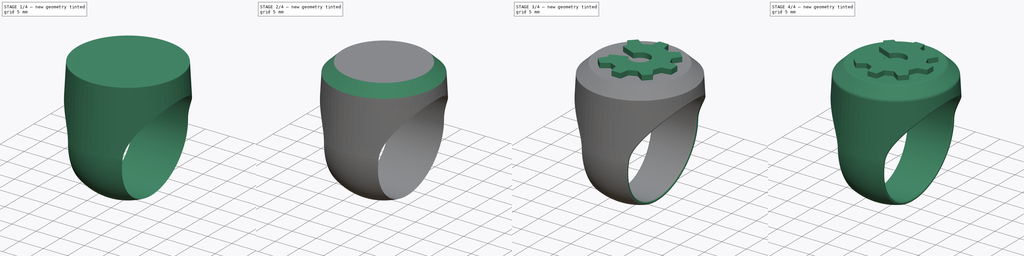
[diagram: build sequence overview — one tinted view per stage of 4, left to right]
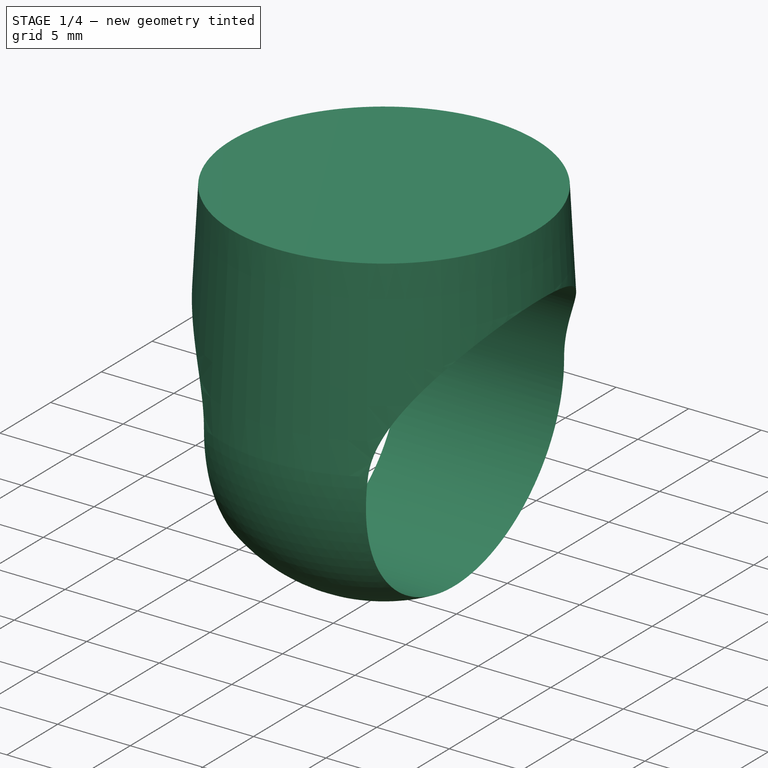
[diagram: stage 1 of 4 — iso view after this stage's code; geometry added in this stage tinted green]
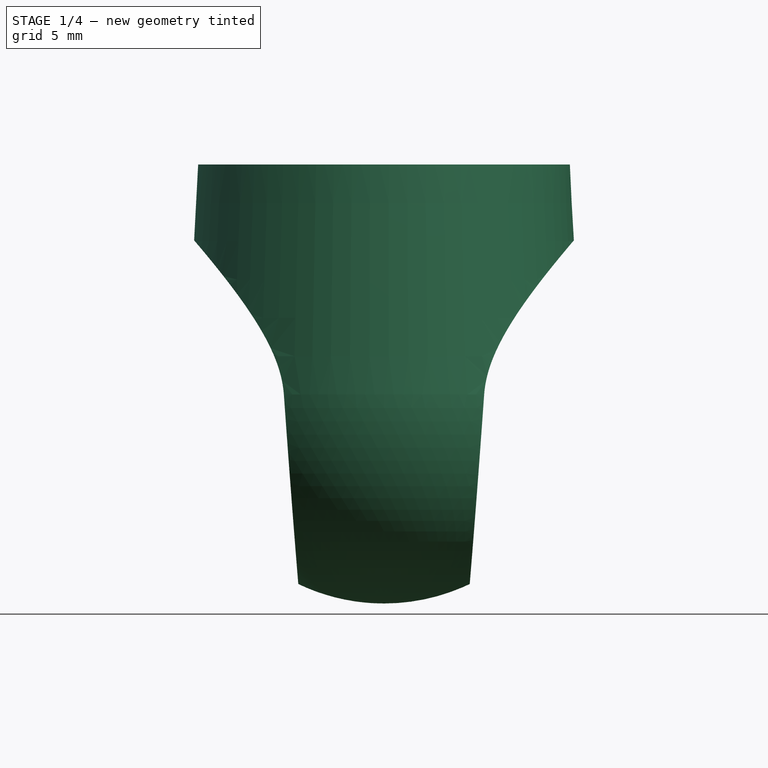
[diagram: stage 1 of 4 — front view after this stage's code; geometry added in this stage tinted green]
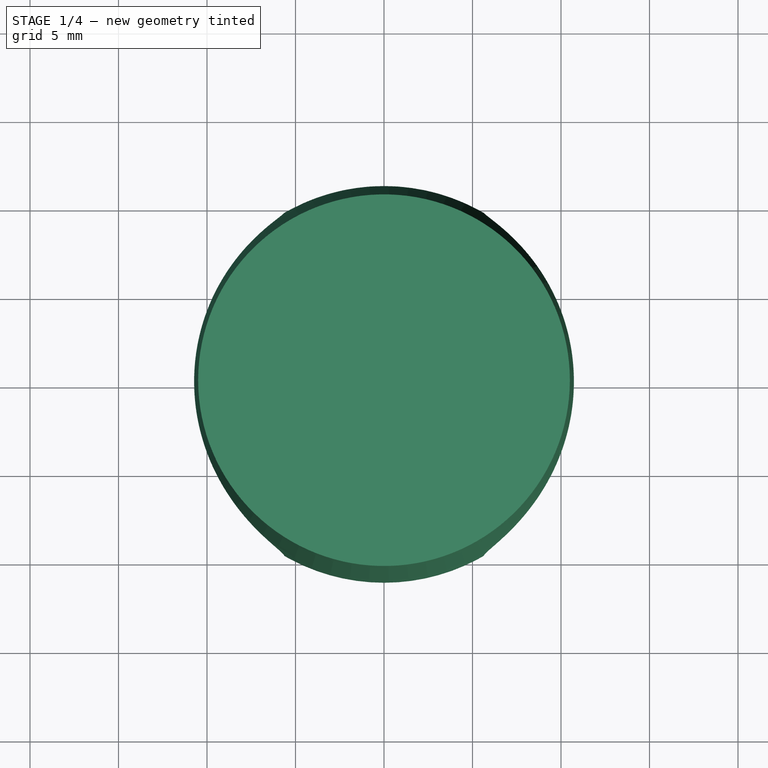
[diagram: stage 1 of 4 — top view after this stage's code; geometry added in this stage tinted green]
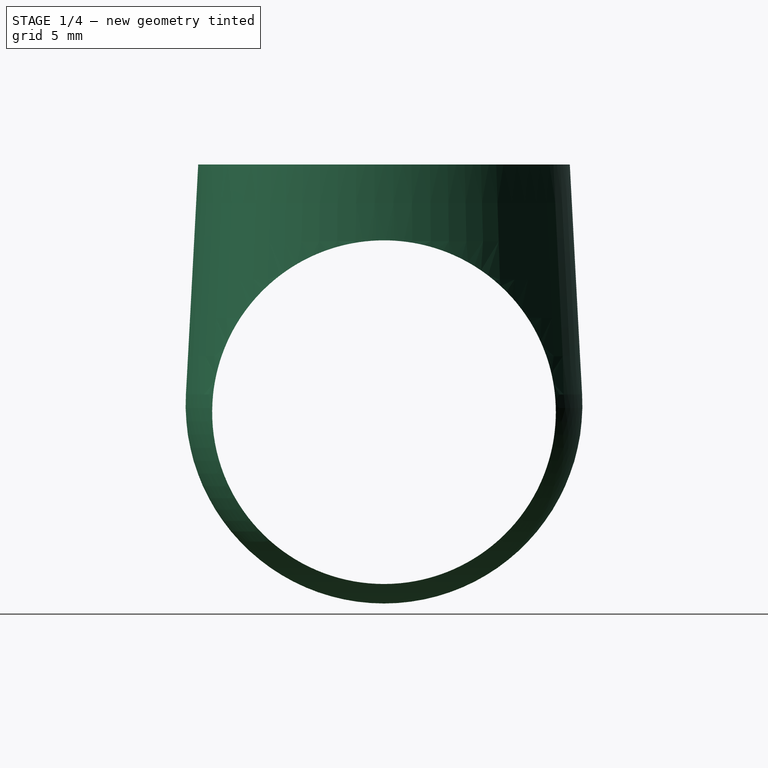
[diagram: stage 1 of 4 — right view after this stage's code; geometry added in this stage tinted green]
FCSTD DOCUMENT  (FreeCAD 1.1R44795 (Git))
Label: RingOshw
License: All rights reserved
objects: PartDesign::Fillet×5, Sketcher::SketchObject×4, PartDesign::Pocket×2, App::Point×1, App::VarSet×1, PartDesign::Revolution×1, PartDesign::Chamfer×1, PartDesign::Pad×1, PartDesign::Body×1
note: 39 computed .brp shape members not serialized (recipe doc carries the construction recipe); baked Part::Feature solids carry a one-line shape summary decoded from their .brp

FEATURE [App::Point] Origin001
  Role = Origin
FEATURE [App::VarSet] VarSet  label="Dimensions"
  FaceDiameter = 21
  FingerHoleOffset = 0.4
  GearPad = 1
  InteriorDiameter = 19.4169
  RingThickness = 1.5
  Size = 61
  WallThickness = 1.5
  expr: InteriorDiameter = Size / 3.14159
FEATURE [Sketcher::SketchObject] Sketch  label="RingBodySketch"
  ArcFitTolerance = 1e-06
  AttachmentSupport = -> [Origin]
  ExternalTypes = [0]
  FullyConstrained = true
  MakeInternals = false
  MapMode = 5
  Placement = pos=(0,0,0) rot=(1,0,0;1.5708rad)
  _ExternalGeoVersion = 1
  expr: Constraints[10] = <<Dimensions>>.InteriorDiameter / 2 * 1.4
  expr: Constraints[7] = <<Dimensions>>.InteriorDiameter / 2 + <<Dimensions>>.RingThickness
  expr: Constraints[9] = <<Dimensions>>.FaceDiameter / 2
  sketch-geometry (4):
    g0: ArcOfCircle CenterX=0 CenterY=0 CenterZ=0 NormalX=0 NormalY=0 NormalZ=1 AngleXU=0 Radius=11.2085 StartAngle=3.08835 EndAngle=4.71239
    g1: LineSegment StartX=-11.1926 StartY=0.596499 StartZ=0 EndX=-10.5 EndY=13.5918 EndZ=0
    g2: LineSegment StartX=-10.5 StartY=13.5918 StartZ=0 EndX=-1.8e-15 EndY=13.5918 EndZ=0
    g3: LineSegment StartX=-2.1e-15 StartY=13.5918 StartZ=0 EndX=-2.1e-15 EndY=-11.2085 EndZ=0
  constraints (11):
    c: Coincident(g0,g-1)
    c: Coincident(g2,g1)
    c: Horizontal(g2)
    c: Coincident(g3,g2)
    c: Coincident(g3,g0)
    c: Vertical(g3)
    c: Tangent(g1,g0) = 1.5708
    c: Radius(g0) = 11.2085
    c: PointOnObject(g2,g-2)
    c: Distance(g2,g2) = 10.5
    c: Distance(g-1,g2) = 13.5918
FEATURE [PartDesign::Revolution] Revolution  label="RingBody"
  Angle = 360
  Angle2 = 0
  Axis = (0,2e-16,1)
  Base = (0,0,0)
  FuseOrder = 0
  Profile = -> Sketch
  ReferenceAxis = -> Sketch [V_Axis]
  Refine = true
  Suppressed = false
  Type = 0
FEATURE [Sketcher::SketchObject] Sketch001  label="FingerHoleSketch"
  ArcFitTolerance = 1e-06
  AttachmentSupport = -> [Origin]
  ExternalTypes = [0]
  FullyConstrained = true
  MakeInternals = false
  MapMode = 5
  Placement = pos=(0,0,0) rot=(0.57735,0.57735,0.57735;2.0944rad)
  _ExternalGeoVersion = 1
  expr: Constraints[0] = <<Dimensions>>.InteriorDiameter
  expr: Constraints[2] = <<Dimensions>>.FingerHoleOffset
  sketch-geometry (1):
    g0: Circle CenterX=0 CenterY=-0.4 CenterZ=0 NormalX=0 NormalY=0 NormalZ=1 AngleXU=0 Radius=9.70846
  constraints (3):
    c: Diameter(g0) = 19.4169
    c: PointOnObject(g0,g-2)
    c: Distance(g0,g-1) = 0.4
FEATURE [PartDesign::Pocket] Pocket  label="FingerHole"
  BaseFeature = -> Revolution
  Direction = (-1,0,0)
  Length = 5
  Length2 = 5
  Profile = -> Sketch001
  ReferenceAxis = -> Sketch001 [N_Axis]
  Refine = true
  SideType = 2
  Suppressed = false
  Type = 1
  Type2 = 0
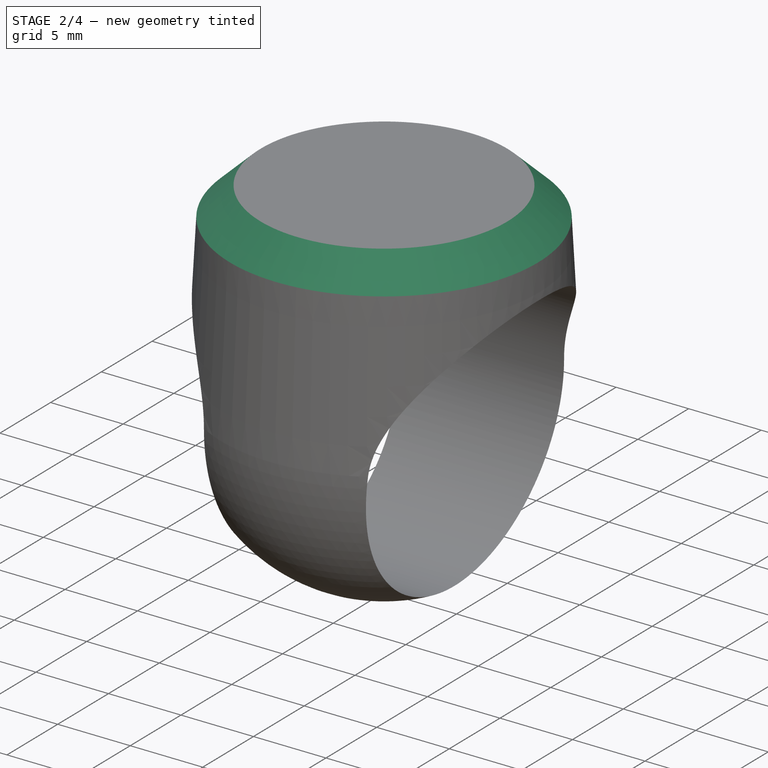
[diagram: stage 2 of 4 — iso view after this stage's code; geometry added in this stage tinted green]
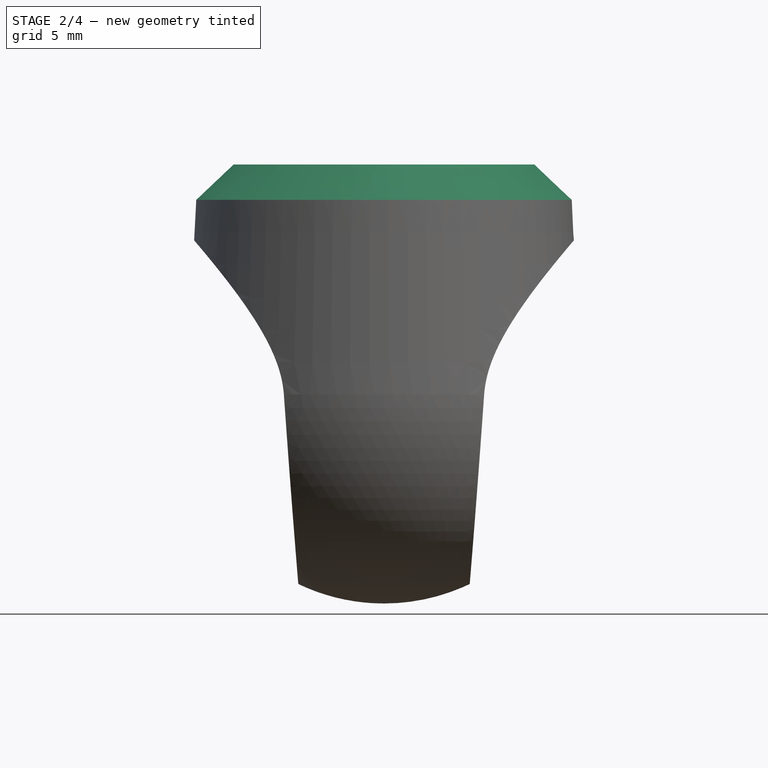
[diagram: stage 2 of 4 — front view after this stage's code; geometry added in this stage tinted green]
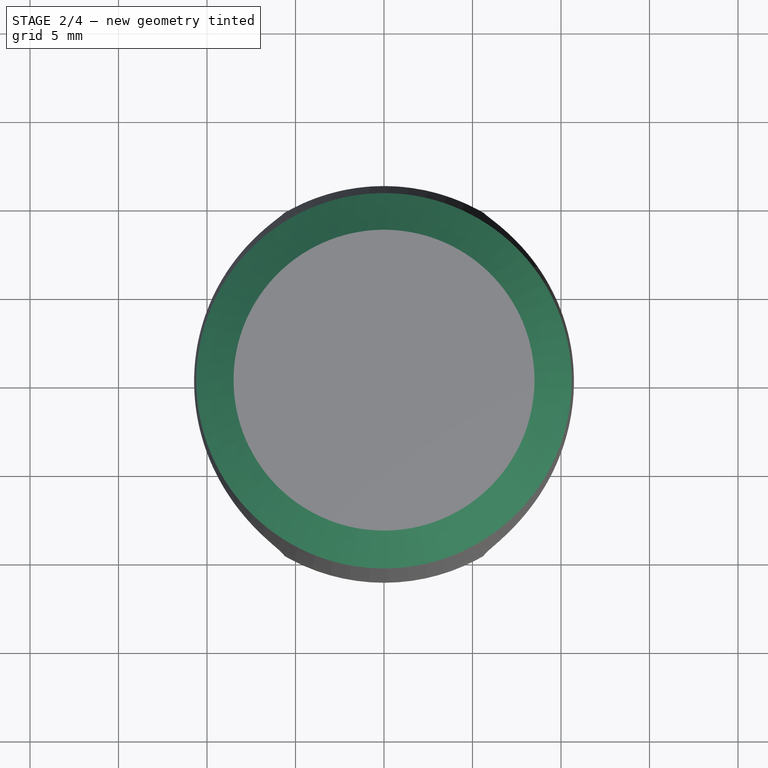
[diagram: stage 2 of 4 — top view after this stage's code; geometry added in this stage tinted green]
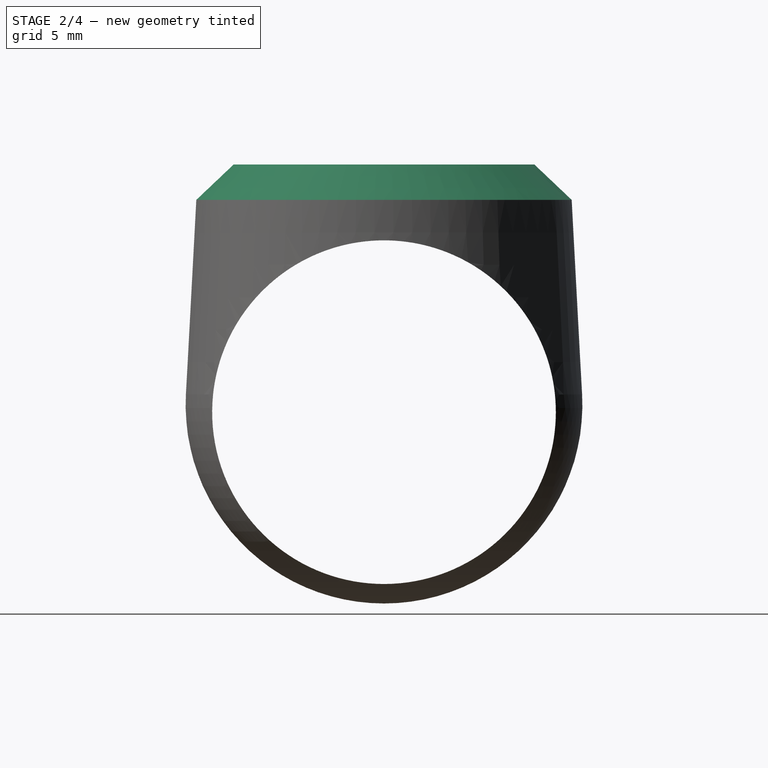
[diagram: stage 2 of 4 — right view after this stage's code; geometry added in this stage tinted green]
FEATURE [Sketcher::SketchObject] Sketch002  label="MaterialOptimizationSketch"
  ArcFitTolerance = 1e-06
  AttachmentSupport = -> [Pocket]
  ExternalTypes = [0]
  FullyConstrained = true
  MakeInternals = false
  MapMode = 5
  Placement = pos=(0,3e-15,13.5918) rot=(0,0,1;0rad)
  _ExternalGeoVersion = 1
  expr: Constraints[1] = <<Dimensions>>.FaceDiameter - <<Dimensions>>.WallThickness * 2
  sketch-geometry (1):
    g0: Circle CenterX=0 CenterY=0 CenterZ=0 NormalX=0 NormalY=0 NormalZ=1 AngleXU=0 Radius=9
  constraints (2):
    c: Coincident(g0,g-1)
    c: Diameter(g0) = 18
FEATURE [PartDesign::Pocket] Pocket001  label="MaterialOptimization"
  BaseFeature = -> Pocket
  Direction = (0,0,-1)
  Length = 8
  Length2 = -1.5
  Profile = -> Sketch002
  ReferenceAxis = -> Sketch002 [N_Axis]
  Refine = true
  SideType = 1
  Suppressed = false
  Type = 2
  Type2 = 0
  expr: Length2 = -<<Dimensions>>.WallThickness
FEATURE [PartDesign::Fillet] Fillet  label="OptimizationPocketFillet"
  Base = -> Pocket001 [Edge17]
  BaseFeature = -> Pocket001
  Radius = 1
  Refine = true
  SupportTransform = false
  Suppressed = false
  UseAllEdges = false
FEATURE [PartDesign::Chamfer] Chamfer  label="FaceChamfer"
  Angle = 45
  Base = -> Fillet [Edge20]
  BaseFeature = -> Fillet
  ChamferType = 0
  FlipDirection = false
  Refine = true
  Size = 2
  Size2 = 1
  SupportTransform = false
  Suppressed = false
  UseAllEdges = false
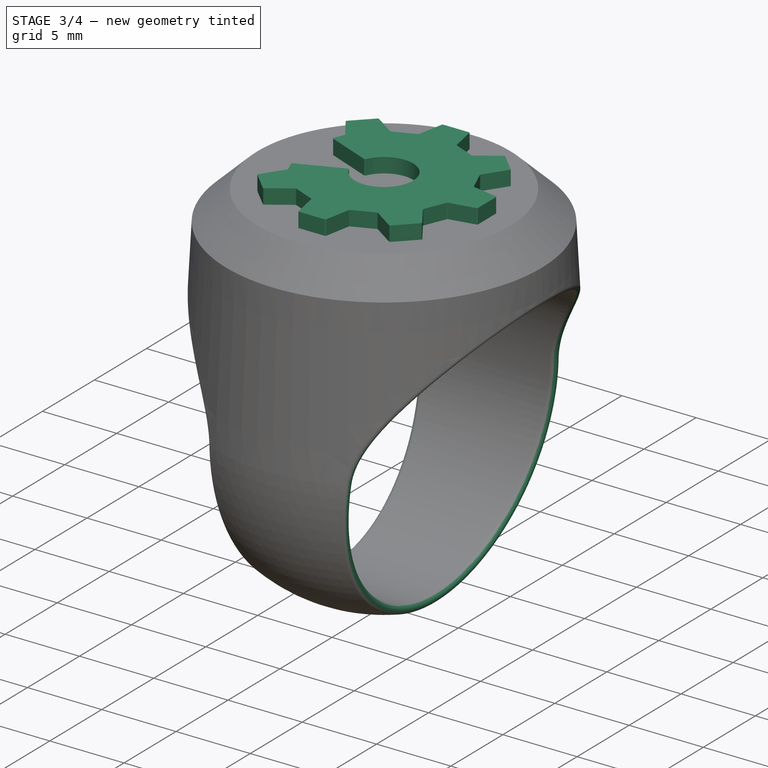
[diagram: stage 3 of 4 — iso view after this stage's code; geometry added in this stage tinted green]
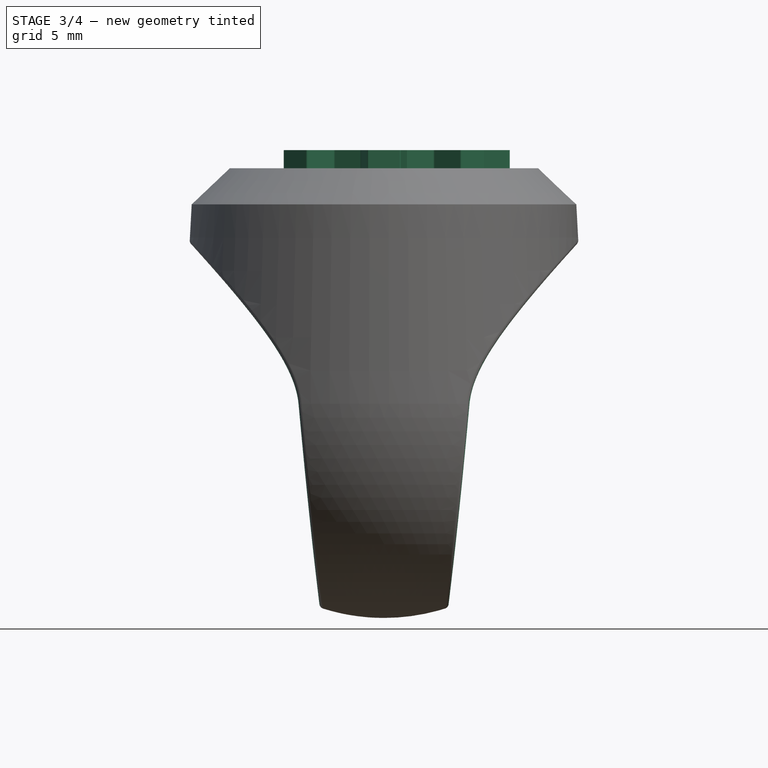
[diagram: stage 3 of 4 — front view after this stage's code; geometry added in this stage tinted green]
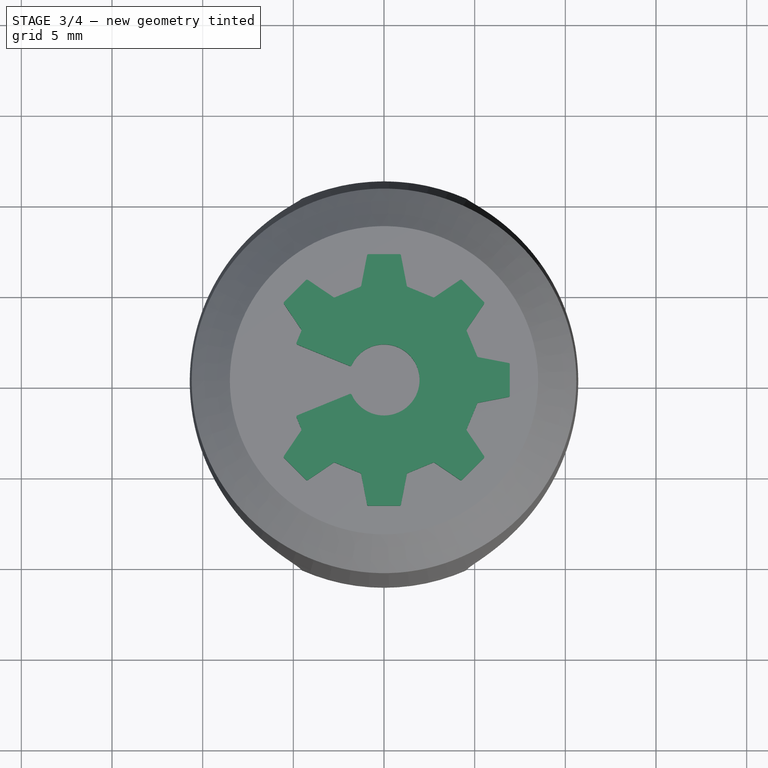
[diagram: stage 3 of 4 — top view after this stage's code; geometry added in this stage tinted green]
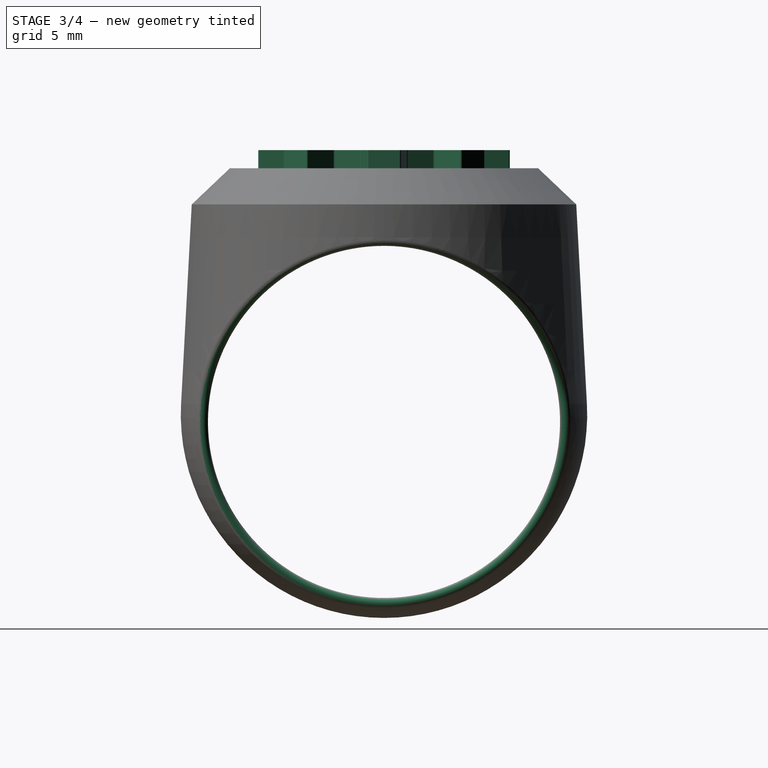
[diagram: stage 3 of 4 — right view after this stage's code; geometry added in this stage tinted green]
FEATURE [Sketcher::SketchObject] Sketch003  label="OshwGearSketch"
  ArcFitTolerance = 1e-06
  AttachmentSupport = -> [Chamfer]
  ExternalTypes = [0]
  FullyConstrained = false
  MakeInternals = false
  MapMode = 5
  Placement = pos=(0,3e-15,13.5918) rot=(0,0,1;0rad)
  _ExternalGeoVersion = 1
  sketch-geometry (64):
    g0: ArcOfCircle CenterX=-1e-06 CenterY=0 CenterZ=0 NormalX=0 NormalY=0 NormalZ=1 AngleXU=0 Radius=1.96007 StartAngle=3.57295 EndAngle=8.99342
    g1: ArcOfCircle CenterX=-1.86188 CenterY=0.856953 CenterZ=0 NormalX=0 NormalY=0 NormalZ=1 AngleXU=0 Radius=0.0895606 StartAngle=4.32465 EndAngle=5.85192
    g2: LineSegment StartX=-1.89575 StartY=0.774041 StartZ=0 EndX=-4.7737 EndY=1.94913 EndZ=0
    g3: ArcOfCircle CenterX=-4.73984 CenterY=2.03205 CenterZ=0 NormalX=0 NormalY=0 NormalZ=1 AngleXU=0 Radius=0.089574 StartAngle=2.74895 EndAngle=4.32468
    g4: LineSegment StartX=-4.8226 StartY=2.06632 StartZ=0 EndX=-4.55822 EndY=2.70459 EndZ=0
    g5: ArcOfCircle CenterX=-4.64095 CenterY=2.73887 CenterZ=0 NormalX=0 NormalY=0 NormalZ=1 AngleXU=0 Radius=0.089552 StartAngle=5.89038 EndAngle=6.8781
    g6: LineSegment StartX=-4.56678 StartY=2.78906 StartZ=0 EndX=-5.51646 EndY=4.19277 EndZ=0
    g7: ArcOfCircle CenterX=-5.44226 CenterY=4.24296 CenterZ=0 NormalX=0 NormalY=0 NormalZ=1 AngleXU=0 Radius=0.089581 StartAngle=2.3563 EndAngle=3.7363
    g8: LineSegment StartX=-5.50561 StartY=4.30629 StartZ=0 EndX=-4.3063 EndY=5.50561 EndZ=0
    g9: ArcOfCircle CenterX=-4.24296 CenterY=5.44227 CenterZ=0 NormalX=0 NormalY=0 NormalZ=1 AngleXU=0 Radius=0.089579 StartAngle=0.976061 EndAngle=2.35612
    g10: LineSegment StartX=-4.19277 StartY=5.51646 StartZ=0 EndX=-2.78906 EndY=4.56678 EndZ=0
    g11: ArcOfCircle CenterX=-2.73887 CenterY=4.64095 CenterZ=0 NormalX=0 NormalY=0 NormalZ=1 AngleXU=0 Radius=0.089556 StartAngle=4.11749 EndAngle=5.10517
    g12: LineSegment StartX=-2.70459 StartY=4.55822 StartZ=0 EndX=-1.31071 EndY=5.13558 EndZ=0
    g13: ArcOfCircle CenterX=-1.34499 CenterY=5.21834 CenterZ=0 NormalX=0 NormalY=0 NormalZ=1 AngleXU=0 Radius=0.08957 StartAngle=5.10509 EndAngle=6.0926
    g14: LineSegment StartX=-1.25704 StartY=5.20137 StartZ=0 EndX=-0.935995 EndY=6.86546 EndZ=0
    g15: ArcOfCircle CenterX=-0.848047 CenterY=6.8485 CenterZ=0 NormalX=0 NormalY=0 NormalZ=1 AngleXU=0 Radius=0.08957 StartAngle=1.5708 EndAngle=2.95101
    g16: LineSegment StartX=-0.848047 StartY=6.93807 StartZ=0 EndX=0.848045 EndY=6.93807 EndZ=0
    g17: ArcOfCircle CenterX=0.848045 CenterY=6.8485 CenterZ=0 NormalX=0 NormalY=0 NormalZ=1 AngleXU=0 Radius=0.08957 StartAngle=0.190585 EndAngle=1.5708
    g18: LineSegment StartX=0.935993 StartY=6.86546 StartZ=0 EndX=1.25704 EndY=5.20137 EndZ=0
    g19: ArcOfCircle CenterX=1.34499 CenterY=5.21834 CenterZ=0 NormalX=0 NormalY=0 NormalZ=1 AngleXU=0 Radius=0.089576 StartAngle=3.33222 EndAngle=4.31964
    g20: LineSegment StartX=1.31071 StartY=5.13558 StartZ=0 EndX=2.70459 EndY=4.55822 EndZ=0
    g21: ArcOfCircle CenterX=2.73887 CenterY=4.64095 CenterZ=0 NormalX=0 NormalY=0 NormalZ=1 AngleXU=0 Radius=0.089552 StartAngle=4.31958 EndAngle=5.30731
    g22: LineSegment StartX=2.78906 StartY=4.56679 StartZ=0 EndX=4.19277 EndY=5.51646 EndZ=0
    g23: ArcOfCircle CenterX=4.24296 CenterY=5.44227 CenterZ=0 NormalX=0 NormalY=0 NormalZ=1 AngleXU=0 Radius=0.0895762 StartAngle=0.785459 EndAngle=2.16555
    g24: LineSegment StartX=4.30629 StartY=5.50561 StartZ=0 EndX=5.50561 EndY=4.3063 EndZ=0
    g25: ArcOfCircle CenterX=5.44228 CenterY=4.24296 CenterZ=0 NormalX=0 NormalY=0 NormalZ=1 AngleXU=0 Radius=0.0895703 StartAngle=5.68837 EndAngle=7.06858
    g26: LineSegment StartX=5.51646 StartY=4.19277 StartZ=0 EndX=4.56678 EndY=2.78906 EndZ=0
    g27: ArcOfCircle CenterX=4.64097 CenterY=2.73887 CenterZ=0 NormalX=0 NormalY=0 NormalZ=1 AngleXU=0 Radius=0.08957 StartAngle=2.54678 EndAngle=3.53429
    g28: LineSegment StartX=4.55822 StartY=2.70459 StartZ=0 EndX=5.13558 EndY=1.31071 EndZ=0
    g29: ArcOfCircle CenterX=5.21833 CenterY=1.34499 CenterZ=0 NormalX=0 NormalY=0 NormalZ=1 AngleXU=0 Radius=0.089572 StartAngle=3.5343 EndAngle=4.52179
    g30: LineSegment StartX=5.20137 StartY=1.25704 StartZ=0 EndX=6.86546 EndY=0.935997 EndZ=0
    g31: ArcOfCircle CenterX=6.84849 CenterY=0.848049 CenterZ=0 NormalX=0 NormalY=0 NormalZ=1 AngleXU=0 Radius=0.08957 StartAngle=6.28318 EndAngle=7.6634
    g32: LineSegment StartX=6.93806 StartY=0.848049 StartZ=0 EndX=6.93806 EndY=-0.848045 EndZ=0
    g33: ArcOfCircle CenterX=6.8485 CenterY=-0.848045 CenterZ=0 NormalX=0 NormalY=0 NormalZ=1 AngleXU=0 Radius=0.08957 StartAngle=4.90297 EndAngle=6.28319
    g34: LineSegment StartX=6.86546 StartY=-0.935993 StartZ=0 EndX=5.20137 EndY=-1.25704 EndZ=0
    g35: ArcOfCircle CenterX=5.21833 CenterY=-1.34499 CenterZ=0 NormalX=0 NormalY=0 NormalZ=1 AngleXU=0 Radius=0.08957 StartAngle=1.76138 EndAngle=2.74889
    g36: LineSegment StartX=5.13558 StartY=-1.31071 StartZ=0 EndX=4.55822 EndY=-2.70459 EndZ=0
    g37: ArcOfCircle CenterX=4.64097 CenterY=-2.73887 CenterZ=0 NormalX=0 NormalY=0 NormalZ=1 AngleXU=0 Radius=0.08957 StartAngle=2.74889 EndAngle=3.7364
    g38: LineSegment StartX=4.56678 StartY=-2.78906 StartZ=0 EndX=5.51646 EndY=-4.19276 EndZ=0
    g39: ArcOfCircle CenterX=5.44229 CenterY=-4.24296 CenterZ=0 NormalX=0 NormalY=0 NormalZ=1 AngleXU=0 Radius=0.0895585 StartAngle=5.49769 EndAngle=6.8781
    g40: LineSegment StartX=5.50561 StartY=-4.30629 StartZ=0 EndX=4.30629 EndY=-5.50561 EndZ=0
    g41: ArcOfCircle CenterX=4.24296 CenterY=-5.44229 CenterZ=0 NormalX=0 NormalY=0 NormalZ=1 AngleXU=0 Radius=0.089561 StartAngle=4.11749 EndAngle=5.49787
    g42: LineSegment StartX=4.19277 StartY=-5.51646 StartZ=0 EndX=2.78906 EndY=-4.56678 EndZ=0
    g43: ArcOfCircle CenterX=2.73887 CenterY=-4.64098 CenterZ=0 NormalX=0 NormalY=0 NormalZ=1 AngleXU=0 Radius=0.089583 StartAngle=0.976062 EndAngle=1.96342
    g44: LineSegment StartX=2.70459 StartY=-4.55822 StartZ=0 EndX=1.31071 EndY=-5.13558 EndZ=0
    g45: ArcOfCircle CenterX=1.34499 CenterY=-5.21833 CenterZ=0 NormalX=0 NormalY=0 NormalZ=1 AngleXU=0 Radius=0.08957 StartAngle=1.9635 EndAngle=2.951
    g46: LineSegment StartX=1.25704 StartY=-5.20137 StartZ=0 EndX=0.935997 EndY=-6.86546 EndZ=0
    g47: ArcOfCircle CenterX=0.848049 CenterY=-6.84849 CenterZ=0 NormalX=0 NormalY=0 NormalZ=1 AngleXU=0 Radius=0.08957 StartAngle=4.71239 EndAngle=6.0926
    g48: LineSegment StartX=0.848049 StartY=-6.93806 StartZ=0 EndX=-0.848045 EndY=-6.93806 EndZ=0
    g49: ArcOfCircle CenterX=-0.848045 CenterY=-6.84849 CenterZ=0 NormalX=0 NormalY=0 NormalZ=1 AngleXU=0 Radius=0.08957 StartAngle=3.33218 EndAngle=4.71239
    g50: LineSegment StartX=-0.935993 StartY=-6.86546 StartZ=0 EndX=-1.25704 EndY=-5.20137 EndZ=0
    g51: ArcOfCircle CenterX=-1.34498 CenterY=-5.21833 CenterZ=0 NormalX=0 NormalY=0 NormalZ=1 AngleXU=0 Radius=0.089563 StartAngle=0.190551 EndAngle=1.17813
    g52: LineSegment StartX=-1.31071 StartY=-5.13558 StartZ=0 EndX=-2.70459 EndY=-4.55822 EndZ=0
    g53: ArcOfCircle CenterX=-2.73887 CenterY=-4.64099 CenterZ=0 NormalX=0 NormalY=0 NormalZ=1 AngleXU=0 Radius=0.089588 StartAngle=1.1782 EndAngle=2.1655
    g54: LineSegment StartX=-2.78906 StartY=-4.56678 StartZ=0 EndX=-4.19277 EndY=-5.51646 EndZ=0
    g55: ArcOfCircle CenterX=-4.24296 CenterY=-5.44228 CenterZ=0 NormalX=0 NormalY=0 NormalZ=1 AngleXU=0 Radius=0.0895626 StartAngle=3.92693 EndAngle=5.30726
    g56: LineSegment StartX=-4.30629 StartY=-5.50561 StartZ=0 EndX=-5.50561 EndY=-4.30629 EndZ=0
    g57: ArcOfCircle CenterX=-5.44226 CenterY=-4.24296 CenterZ=0 NormalX=0 NormalY=0 NormalZ=1 AngleXU=0 Radius=0.089579 StartAngle=2.54687 EndAngle=3.9269
    g58: LineSegment StartX=-5.51646 StartY=-4.19277 StartZ=0 EndX=-4.56678 EndY=-2.78906 EndZ=0
    g59: ArcOfCircle CenterX=-4.64097 CenterY=-2.73887 CenterZ=0 NormalX=0 NormalY=0 NormalZ=1 AngleXU=0 Radius=0.08957 StartAngle=5.68837 EndAngle=6.67589
    g60: LineSegment StartX=-4.55822 StartY=-2.70459 StartZ=0 EndX=-4.8226 EndY=-2.06632 EndZ=0
    g61: ArcOfCircle CenterX=-4.73984 CenterY=-2.03205 CenterZ=0 NormalX=0 NormalY=0 NormalZ=1 AngleXU=0 Radius=0.0895785 StartAngle=1.95854 EndAngle=3.53419
    g62: LineSegment StartX=-4.77371 StartY=-1.94913 StartZ=0 EndX=-1.89574 EndY=-0.774042 EndZ=0
    g63: ArcOfCircle CenterX=-1.86189 CenterY=-0.856966 CenterZ=0 NormalX=0 NormalY=0 NormalZ=1 AngleXU=0 Radius=0.0895683 StartAngle=0.431388 EndAngle=1.95841
  constraints (64):
    c: Coincident(g47,g48)
    c: Coincident(g48,g49)
    c: Coincident(g46,g47)
    c: Coincident(g49,g50)
    c: Coincident(g41,g42)
    c: Coincident(g54,g55)
    c: Coincident(g40,g41)
    c: Coincident(g55,g56)
    c: Coincident(g45,g46)
    c: Coincident(g50,g51)
    c: Coincident(g44,g45)
    c: Coincident(g51,g52)
    c: Coincident(g42,g43)
    c: Coincident(g53,g54)
    c: Coincident(g43,g44)
    c: Coincident(g52,g53)
    c: Coincident(g39,g40)
    c: Coincident(g56,g57)
    c: Coincident(g38,g39)
    c: Coincident(g57,g58)
    c: Coincident(g37,g38)
    c: Coincident(g58,g59)
    c: Coincident(g36,g37)
    c: Coincident(g59,g60)
    c: Coincident(g60,g61)
    c: Coincident(g61,g62)
    c: Coincident(g35,g36)
    c: Coincident(g34,g35)
    c: Coincident(g33,g34)
    c: Coincident(g32,g33)
    c: Coincident(g0,g63)
    c: Coincident(g62,g63)
    c: Coincident(g1,g2)
    c: Coincident(g0,g1)
    c: Coincident(g31,g32)
    c: Coincident(g30,g31)
    c: Coincident(g29,g30)
    c: Coincident(g28,g29)
    c: Coincident(g2,g3)
    c: Coincident(g3,g4)
    c: Coincident(g27,g28)
    c: Coincident(g4,g5)
    c: Coincident(g26,g27)
    c: Coincident(g5,g6)
    c: Coincident(g25,g26)
    c: Coincident(g6,g7)
    c: Coincident(g24,g25)
    c: Coincident(g7,g8)
    c: Coincident(g20,g21)
    c: Coincident(g11,g12)
    c: Coincident(g21,g22)
    c: Coincident(g10,g11)
    c: Coincident(g19,g20)
    c: Coincident(g12,g13)
    c: Coincident(g18,g19)
    c: Coincident(g13,g14)
    c: Coincident(g23,g24)
    c: Coincident(g8,g9)
    c: Coincident(g22,g23)
    c: Coincident(g9,g10)
    c: Coincident(g17,g18)
    c: Coincident(g14,g15)
    c: Coincident(g16,g17)
    c: Coincident(g15,g16)
FEATURE [PartDesign::Pad] Pad  label="OshwGear"
  BaseFeature = -> Chamfer
  Direction = (0,0,1)
  Length = 1
  Length2 = 10
  Profile = -> Sketch003
  ReferenceAxis = -> Sketch003 [N_Axis]
  Refine = true
  SideType = 0
  Suppressed = false
  Type = 0
  Type2 = 0
  expr: Length = <<Dimensions>>.GearPad
FEATURE [PartDesign::Fillet] Fillet001  label="RingHoleFillet"
  Base = -> Pad [Edge3,Edge15]
  BaseFeature = -> Pad
  Radius = 0.3
  Refine = true
  SupportTransform = false
  Suppressed = false
  UseAllEdges = false
FEATURE [PartDesign::Fillet] Fillet002  label="InteriorFillet"
  Base = -> Fillet001 [Edge31]
  BaseFeature = -> Fillet001
  Radius = 0.5
  Refine = true
  SupportTransform = false
  Suppressed = false
  UseAllEdges = false
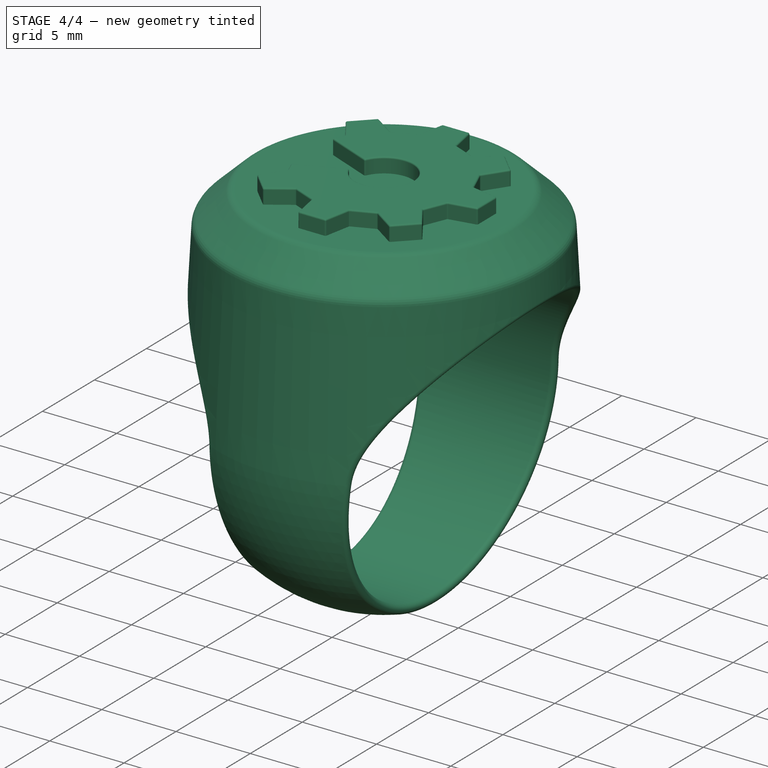
[diagram: stage 4 of 4 — iso view after this stage's code; geometry added in this stage tinted green]
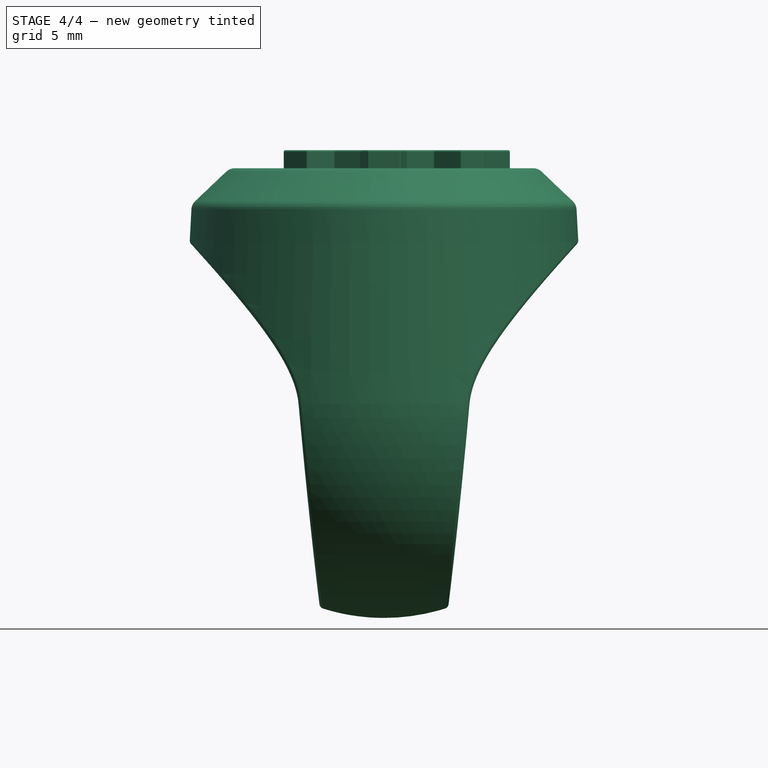
[diagram: stage 4 of 4 — front view after this stage's code; geometry added in this stage tinted green]
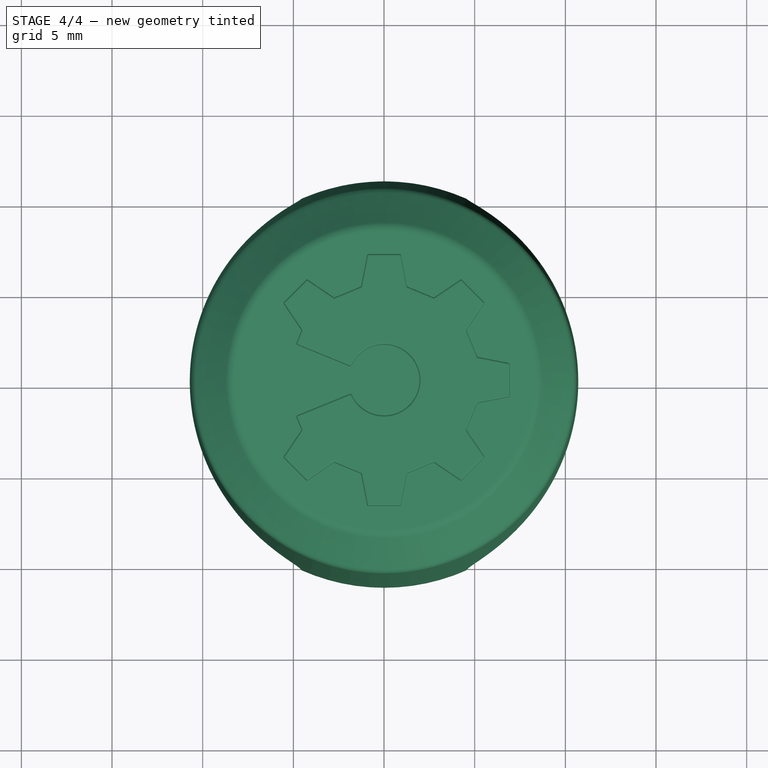
[diagram: stage 4 of 4 — top view after this stage's code; geometry added in this stage tinted green]
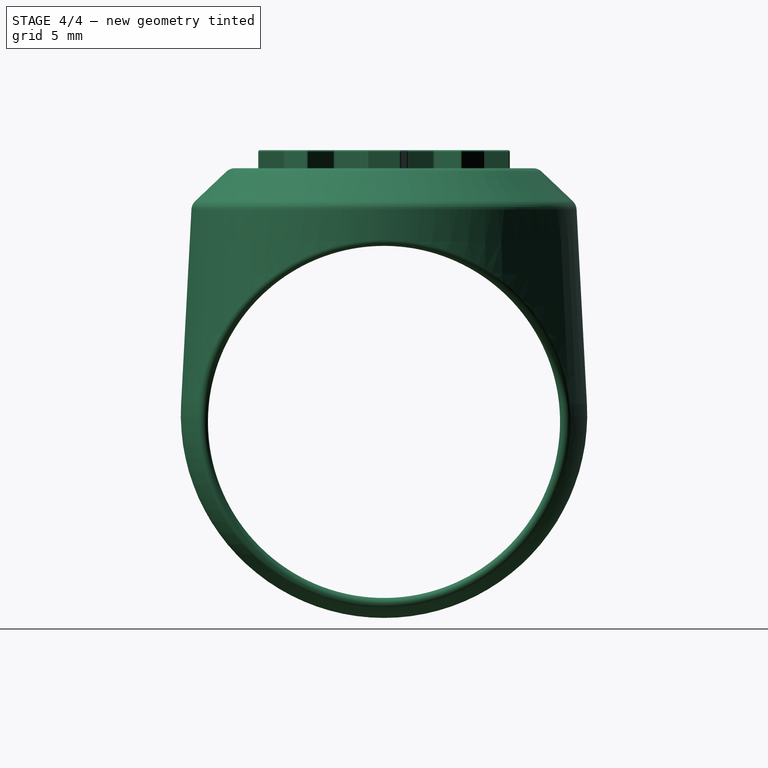
[diagram: stage 4 of 4 — right view after this stage's code; geometry added in this stage tinted green]
FEATURE [PartDesign::Fillet] Fillet003  label="GearFillet"
  Base = -> Fillet002 [Face82]
  BaseFeature = -> Fillet002
  Radius = 0.1
  Refine = true
  SupportTransform = false
  Suppressed = false
  UseAllEdges = false
FEATURE [PartDesign::Fillet] Fillet004
  Base = -> Fillet003 [Face9]
  BaseFeature = -> Fillet003
  Radius = 0.7
  Refine = true
  SupportTransform = false
  Suppressed = false
  UseAllEdges = false
FEATURE [PartDesign::Body] Body  label="Ring"
  AllowCompound = false
  Group = -> [Sketch,Revolution,Sketch001,Pocket,Sketch002,Pocket001,Fillet,Chamfer,Sketch003,Pad,Fillet001,Fillet002,Fillet003,Fillet004]
  Origin = -> Origin
  Tip = -> Fillet004
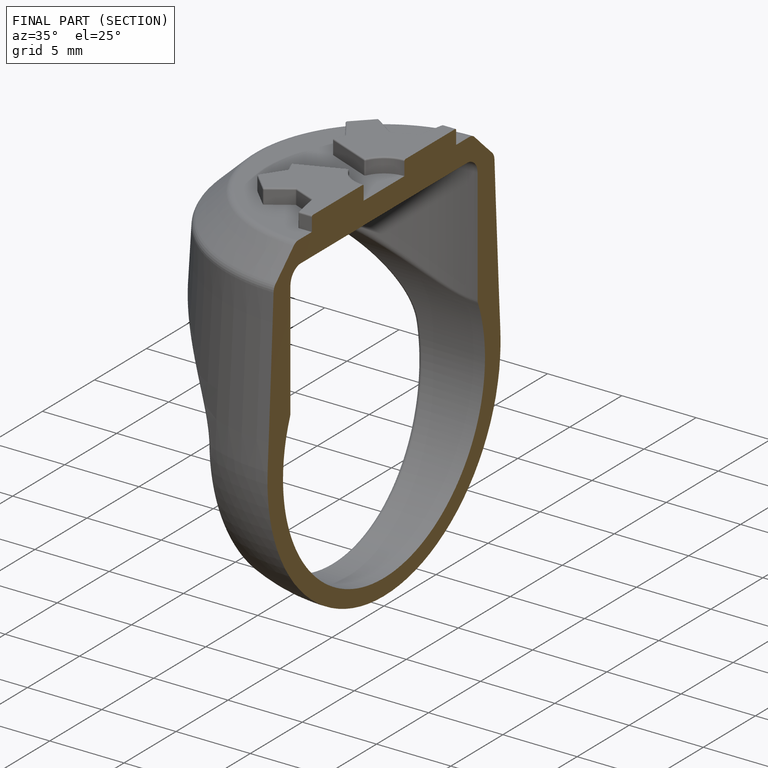
[diagram: finished part — half-section view (interior)]
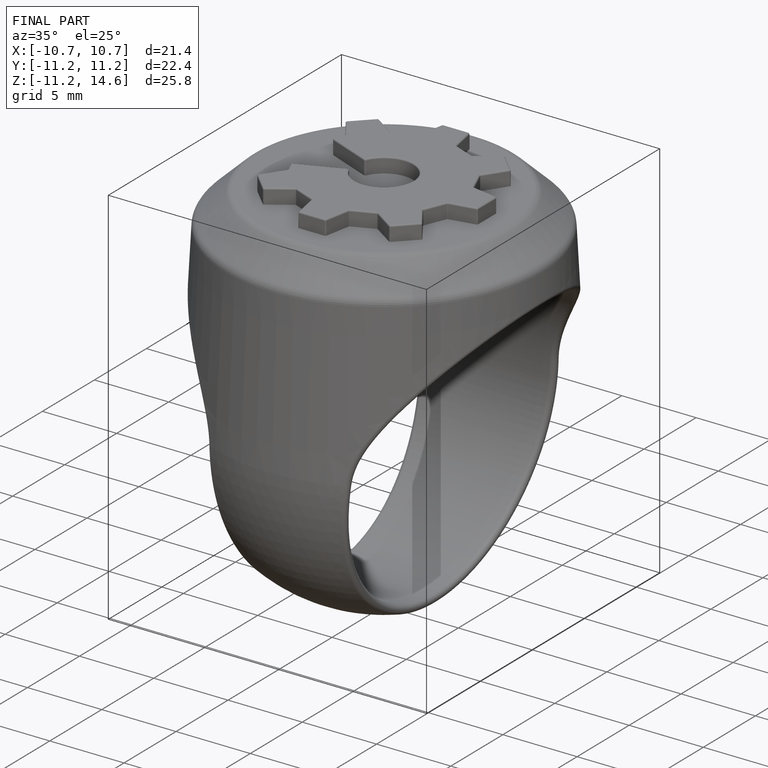
[diagram: finished part — iso view with bounding-box wireframe]
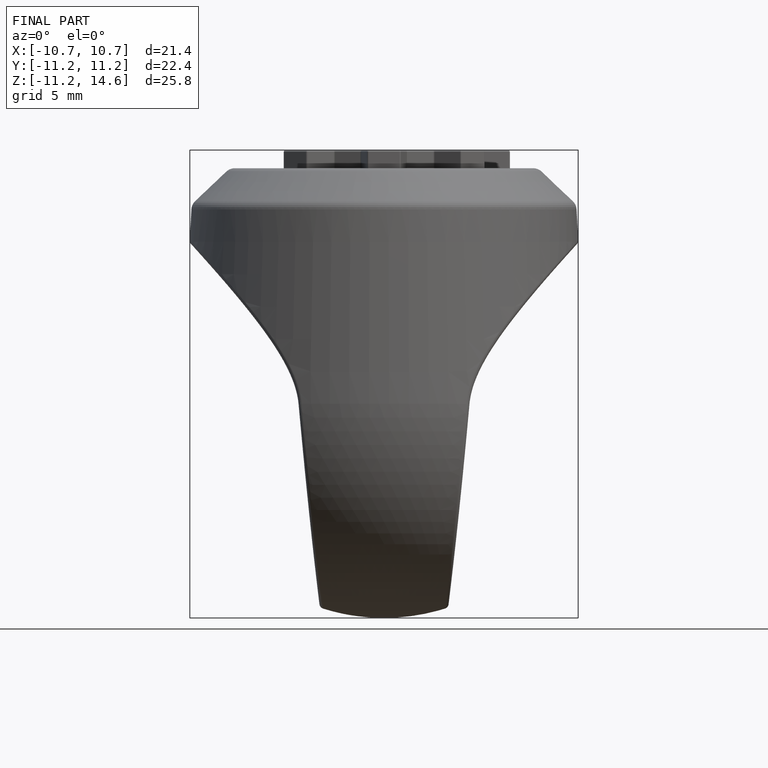
[diagram: finished part — front view with bounding-box wireframe]
